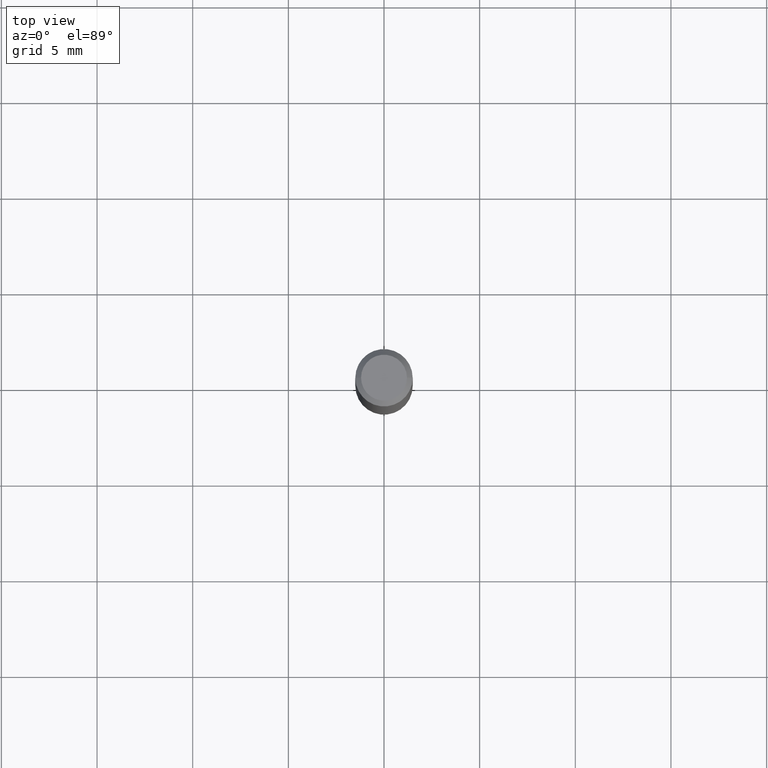
[diagram: clean part render]
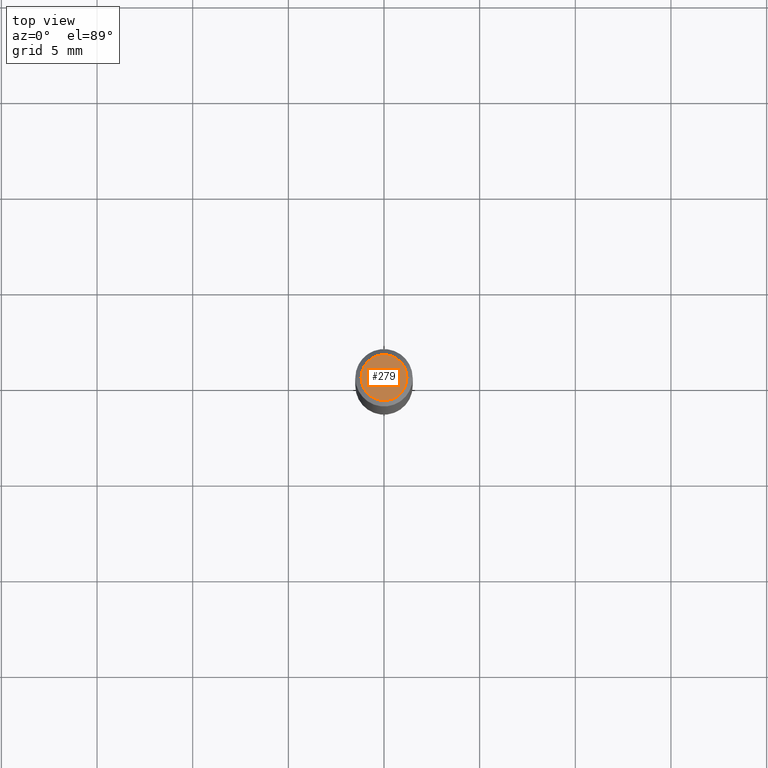
[diagram: same view with one face highlighted and labeled with its STEP entity id]
A machine part, top view. The second image highlights one B-rep face of the part: STEP entity #279.
In plain terms, the highlighted planar face has unit normal (0, -0, -1).
Its self-contained STEP definition (entity closure, byte-faithful):
#9 = EDGE_LOOP ( 'NONE', ( #239, #293 ) ) ;
#12 = AXIS2_PLACEMENT_3D ( 'NONE', #460, #126, #418 ) ;
#24 = DIRECTION ( 'NONE',  ( -2.445468806185136597E-29, 3.491481338843145583E-15, 1.000000000000000000 ) ) ;
#45 = AXIS2_PLACEMENT_3D ( 'NONE', #462, #87, #378 ) ;
#87 = DIRECTION ( 'NONE',  ( 2.438088387897960049E-29, -3.491481338843145188E-15, -1.000000000000000000 ) ) ;
#116 = DIRECTION ( 'NONE',  ( 1.000000000000000000, -6.982962677686266711E-15, 4.876185090822587894E-29 ) ) ;
#126 = DIRECTION ( 'NONE',  ( -2.445468806185136597E-29, 3.491481338843145583E-15, 1.000000000000000000 ) ) ;
#146 = VERTEX_POINT ( 'NONE', #343 ) ;
#162 = PLANE ( 'NONE',  #45 ) ;
#170 = VERTEX_POINT ( 'NONE', #452 ) ;
#180 = CIRCLE ( 'NONE', #12, 0.04724000000000000421 ) ;
#214 = CIRCLE ( 'NONE', #488, 0.04724000000000000421 ) ;
#239 = ORIENTED_EDGE ( 'NONE', *, *, #463, .T. ) ;
#279 = ADVANCED_FACE ( 'NONE', ( #423 ), #162, .F. ) ;
#293 = ORIENTED_EDGE ( 'NONE', *, *, #356, .T. ) ;
#343 = CARTESIAN_POINT ( 'NONE',  ( -0.04724000000000000421, 3.504923541997677355E-16, -3.380025165670481712E-19 ) ) ;
#356 = EDGE_CURVE ( 'NONE', #170, #146, #180, .T. ) ;
#378 = DIRECTION ( 'NONE',  ( -1.000000000000000000, 6.982962677686265922E-15, -4.876176775795935793E-29 ) ) ;
#397 = CARTESIAN_POINT ( 'NONE',  ( 8.265746106709734507E-48, -1.180129479067563789E-33, -3.380025165646692144E-19 ) ) ;
#418 = DIRECTION ( 'NONE',  ( 1.000000000000000000, -6.982962677686266711E-15, 4.876185090822587894E-29 ) ) ;
#423 = FACE_OUTER_BOUND ( 'NONE', #9, .T. ) ;
#452 = CARTESIAN_POINT ( 'NONE',  ( 0.04724000000000000421, -3.852183633974369345E-16, -3.380025165621689721E-19 ) ) ;
#460 = CARTESIAN_POINT ( 'NONE',  ( 8.265746106709734507E-48, -1.180129479067563789E-33, -3.380025165646692144E-19 ) ) ;
#462 = CARTESIAN_POINT ( 'NONE',  ( 4.132873053354867254E-48, -5.900647395337818946E-34, -1.690012582823346072E-19 ) ) ;
#463 = EDGE_CURVE ( 'NONE', #146, #170, #214, .T. ) ;
#488 = AXIS2_PLACEMENT_3D ( 'NONE', #397, #24, #116 ) ;